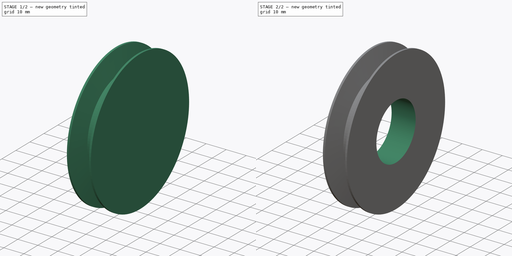
[diagram: build sequence overview — one tinted view per stage of 2, left to right]
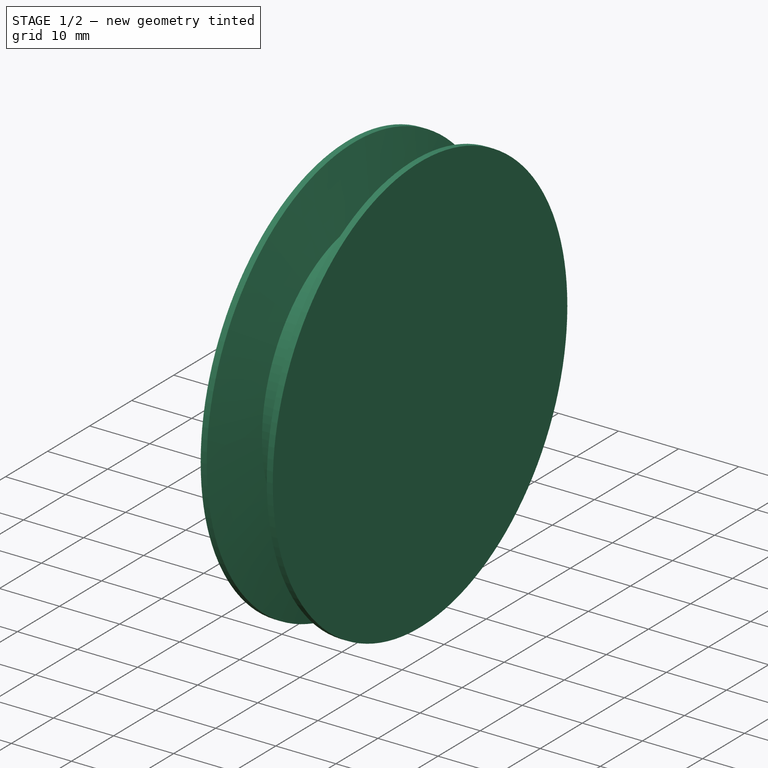
[diagram: stage 1 of 2 — iso view after this stage's code; geometry added in this stage tinted green]
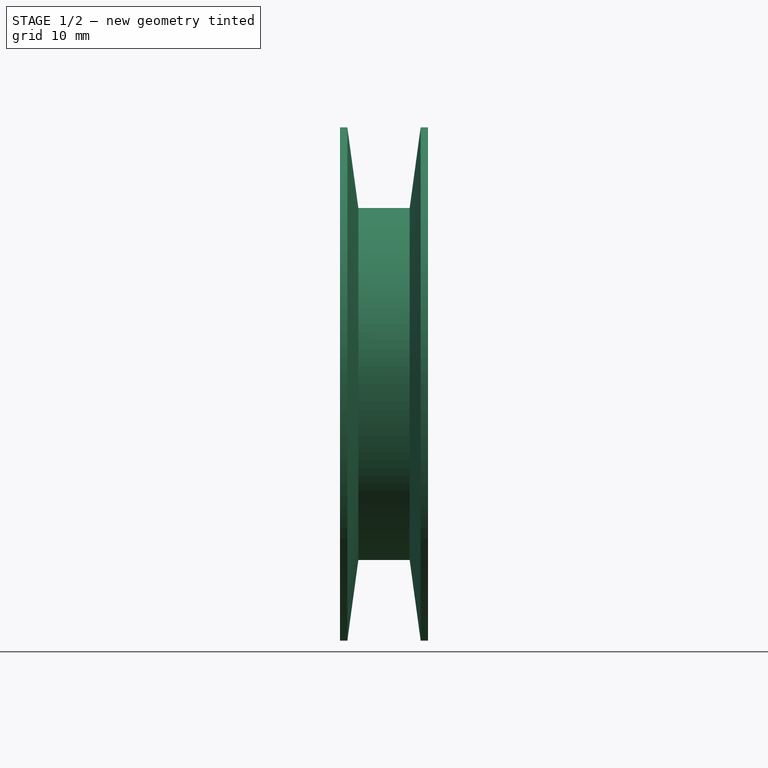
[diagram: stage 1 of 2 — front view after this stage's code; geometry added in this stage tinted green]
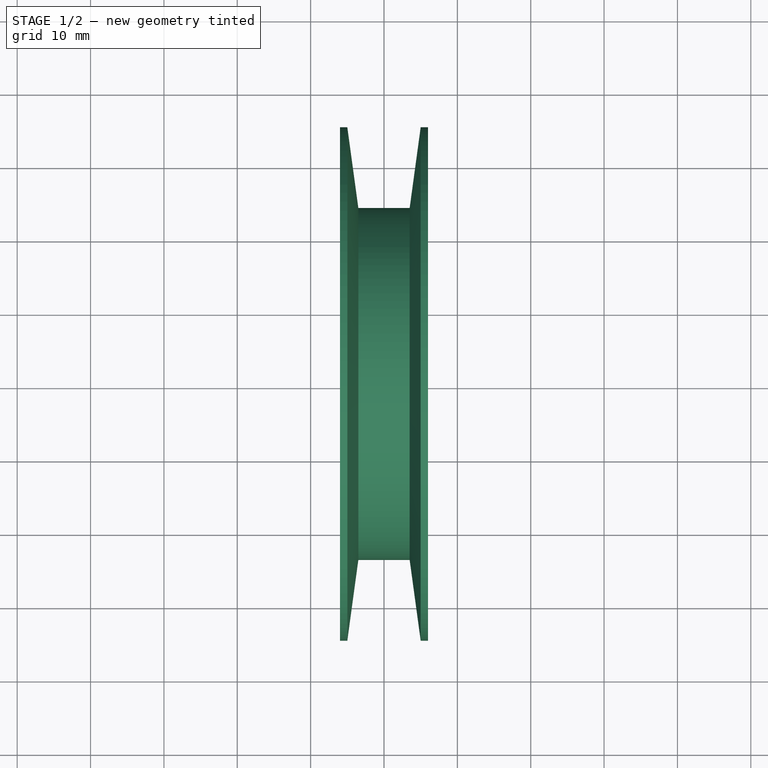
[diagram: stage 1 of 2 — top view after this stage's code; geometry added in this stage tinted green]
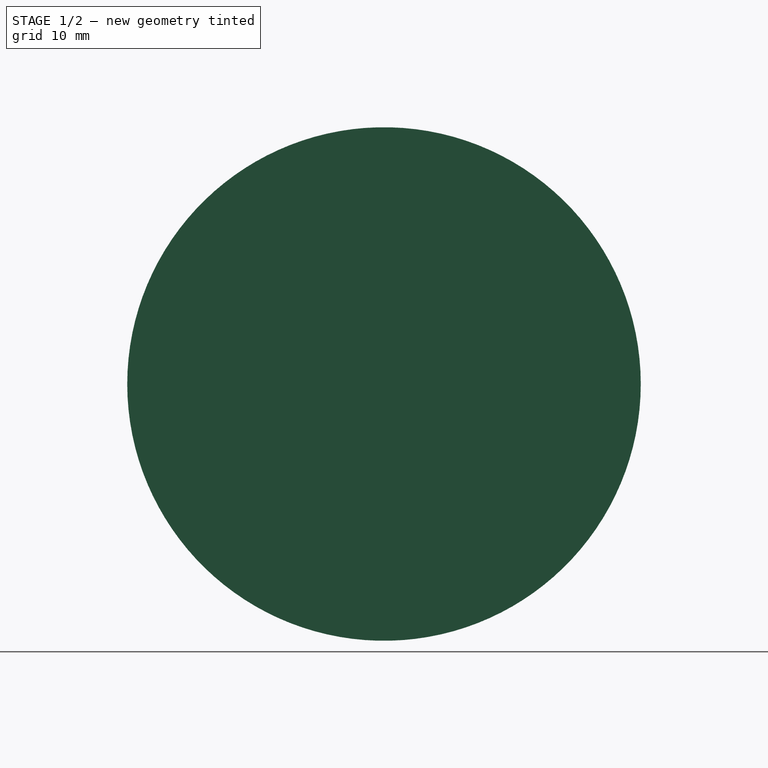
[diagram: stage 1 of 2 — right view after this stage's code; geometry added in this stage tinted green]
FCSTD DOCUMENT  (FreeCAD 0.21R33771 (Git))
Label: Puleggia70-Foro28
License: All rights reserved
LicenseURL: http://en.wikipedia.org/wiki/All_rights_reserved
objects: Sketcher::SketchObject×2, PartDesign::Revolution×1, PartDesign::Pocket×1, PartDesign::CoordinateSystem×1, PartDesign::Body×1
note: 8 computed .brp shape members not serialized (recipe doc carries the construction recipe); baked Part::Feature solids carry a one-line shape summary decoded from their .brp

FEATURE [Sketcher::SketchObject] Sketch
  FullyConstrained = true
  MapMode = 5
  Support = -> [XY_Plane]
  sketch-geometry (8):
    g0: LineSegment StartX=-6 StartY=0 StartZ=0 EndX=6 EndY=1e-16 EndZ=0
    g1: LineSegment StartX=6 StartY=1e-16 StartZ=0 EndX=6 EndY=35 EndZ=0
    g2: LineSegment StartX=3.5 StartY=24 StartZ=0 EndX=-3.5 EndY=24 EndZ=0
    g3: LineSegment StartX=-6 StartY=35 StartZ=0 EndX=-6 EndY=0 EndZ=0
    g4: LineSegment StartX=-6 StartY=35 StartZ=0 EndX=-5 EndY=35 EndZ=0
    g5: LineSegment StartX=6 StartY=35 StartZ=0 EndX=5 EndY=35 EndZ=0
    g6: LineSegment StartX=-5 StartY=35 StartZ=0 EndX=-3.5 EndY=24 EndZ=0
    g7: LineSegment StartX=3.5 StartY=24 StartZ=0 EndX=5 EndY=35 EndZ=0
  constraints (22):
    c: PointOnObject(g0,g-1)
    c: Coincident(g1,g0)
    c: Vertical(g1)
    c: Vertical(g3)
    c: Symmetric(g2,g2,g-2)
    c: Symmetric(g0,g3,g-2)
    c: Coincident(g0,g3)
    c: Equal(g1,g3)
    c: DistanceX(g0,g0) = 12
    c: DistanceY(g0,g2) = 24
    c: DistanceX(g2,g2) = 7
    c: Coincident(g4,g3)
    c: Horizontal(g4)
    c: Coincident(g5,g1)
    c: Equal(g4,g5)
    c: Horizontal(g5)
    c: DistanceX(g4,g4) = 1
    c: Coincident(g6,g4)
    c: Coincident(g6,g2)
    c: Coincident(g7,g2)
    c: Coincident(g7,g5)
    c: DistanceY(g3,g3) = 35
FEATURE [PartDesign::Revolution] Revolution
  Angle = 360
  Axis = (1,0,0)
  Base = (0,0,0)
  Profile = -> Sketch
  ReferenceAxis = -> X_Axis
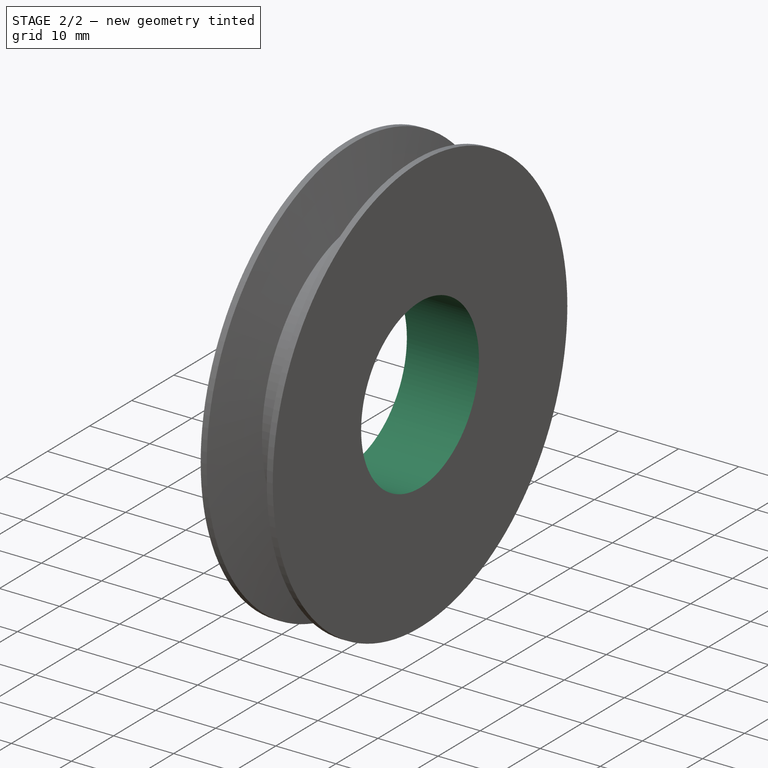
[diagram: stage 2 of 2 — iso view after this stage's code; geometry added in this stage tinted green]
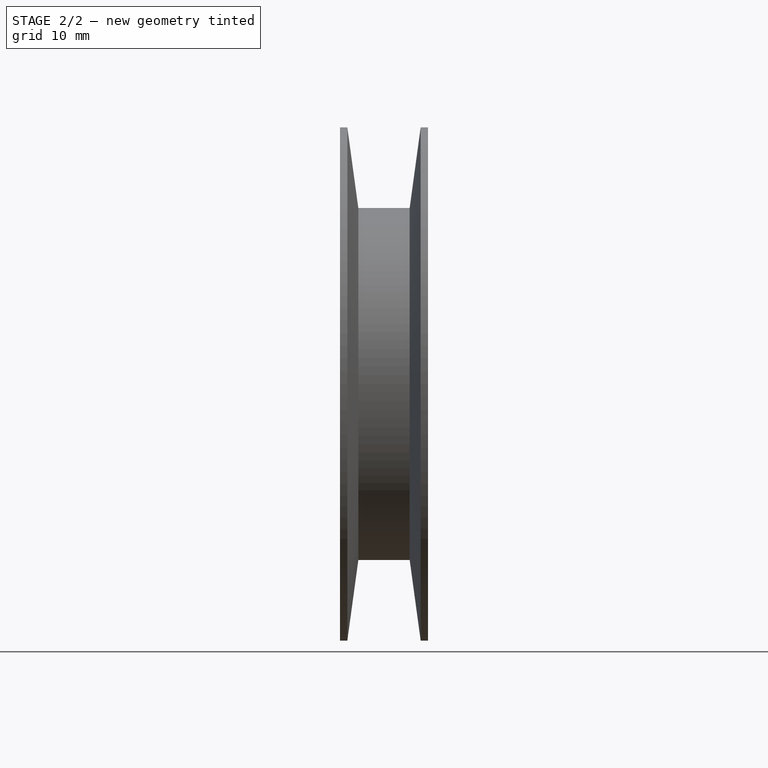
[diagram: stage 2 of 2 — front view after this stage's code; geometry added in this stage tinted green]
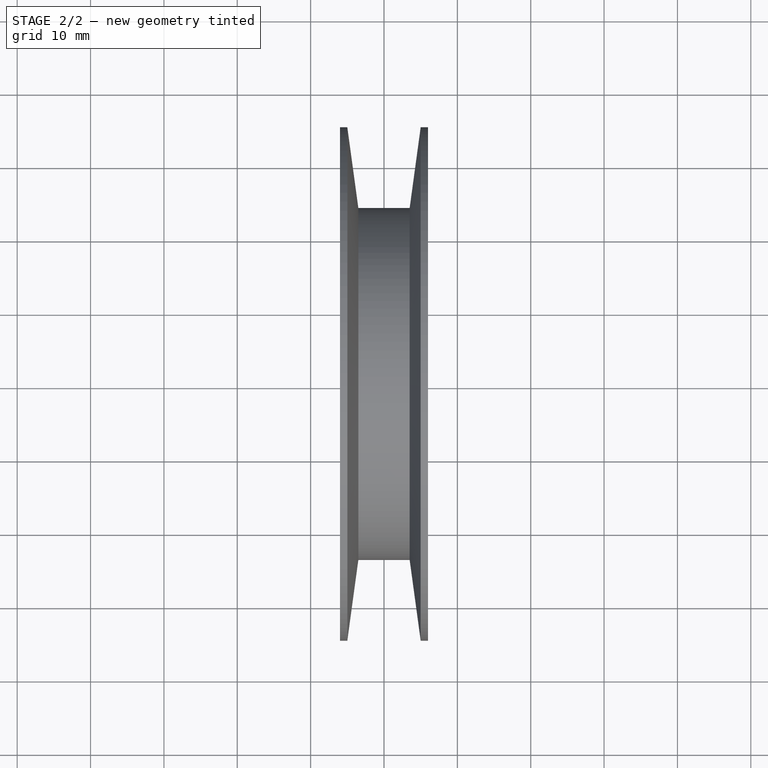
[diagram: stage 2 of 2 — top view after this stage's code; geometry added in this stage tinted green]
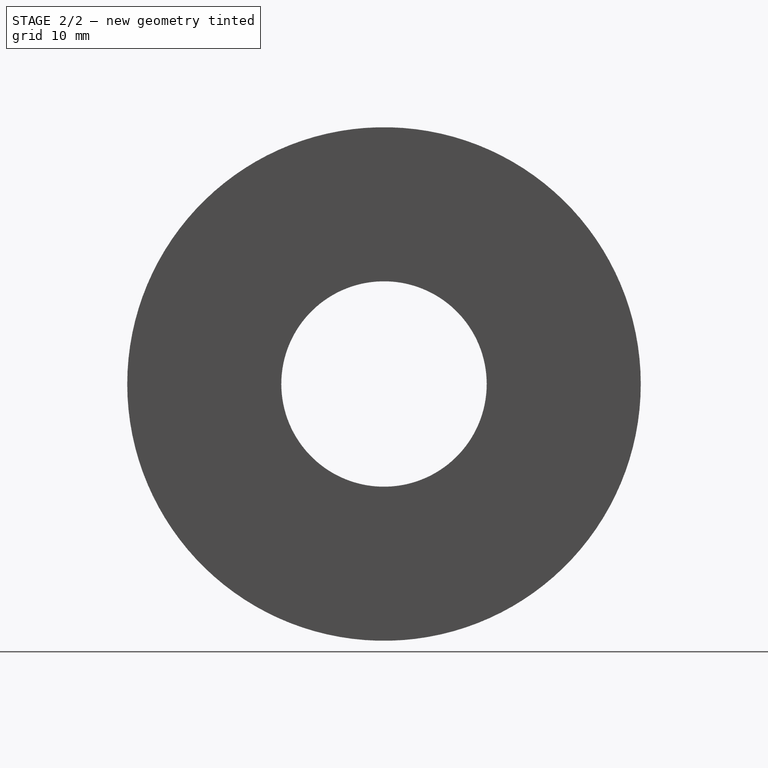
[diagram: stage 2 of 2 — right view after this stage's code; geometry added in this stage tinted green]
FEATURE [Sketcher::SketchObject] Sketch001
  FullyConstrained = true
  MapMode = 5
  Placement = pos=(-6,0,0) rot=(0.57735,-0.57735,-0.57735;2.0944rad)
  Support = -> [Revolution]
  sketch-geometry (1):
    g0: Circle CenterX=0 CenterY=0 CenterZ=0 NormalX=0 NormalY=0 NormalZ=1 AngleXU=0 Radius=14
  constraints (2):
    c: Coincident(g0,g-1)
    c: Radius(g0) = 14
FEATURE [PartDesign::Pocket] Pocket
  BaseFeature = -> Revolution
  Direction = (1,0,0)
  Length = 5
  Length2 = 5
  Profile = -> Sketch001
  ReferenceAxis = -> Sketch001 [N_Axis]
  Type = 1
FEATURE [PartDesign::CoordinateSystem] LCS_Puleggia70  label="LCS_Puleggia70-D28"
  AttacherType = Attacher::AttachEngine3D
FEATURE [PartDesign::Body] Body  label="Corpo"
  Group = -> [Sketch,Revolution,Sketch001,Pocket,LCS_Puleggia70]
  Origin = -> Origin
  Tip = -> Pocket
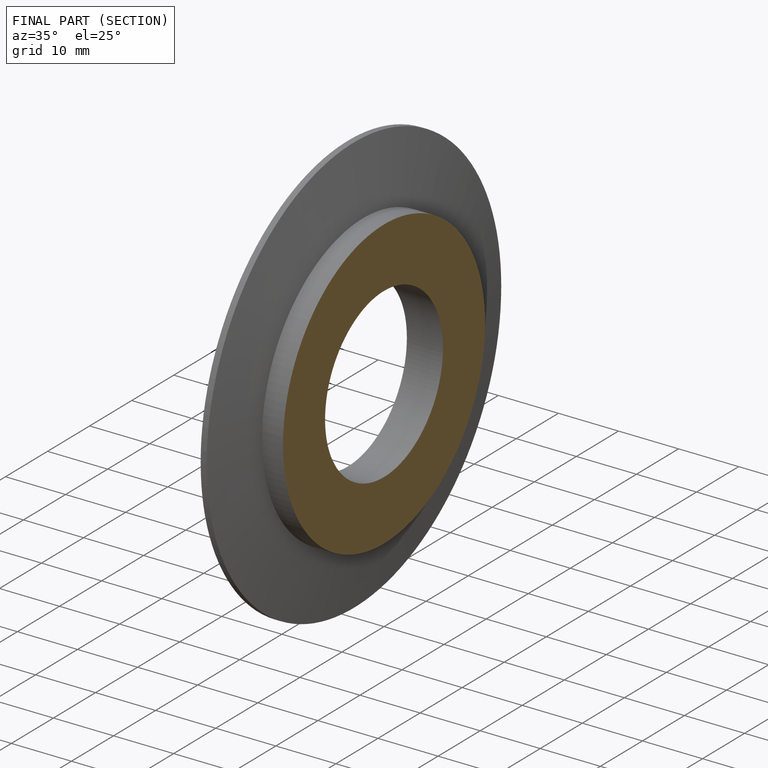
[diagram: finished part — half-section view (interior)]
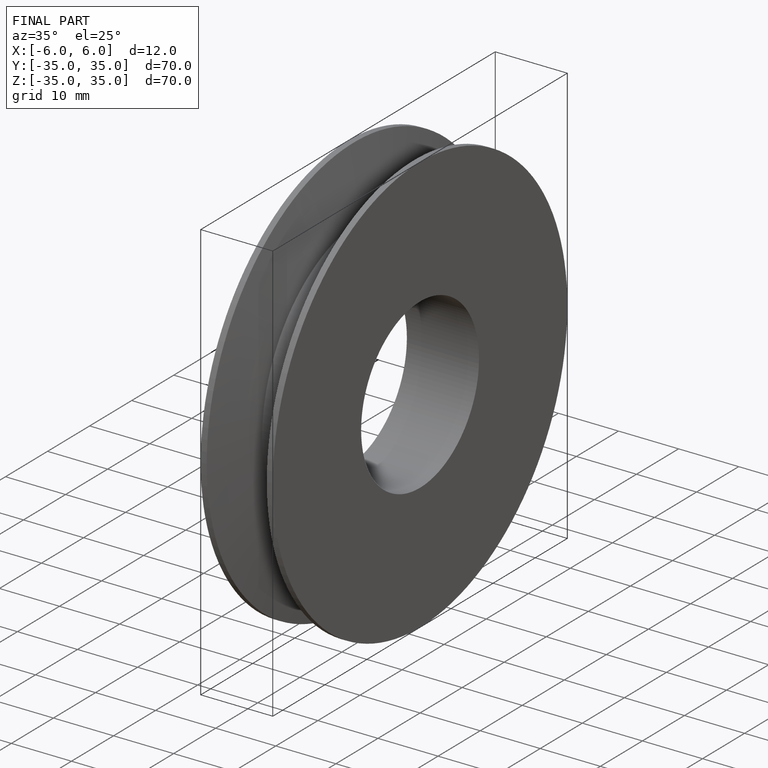
[diagram: finished part — iso view with bounding-box wireframe]
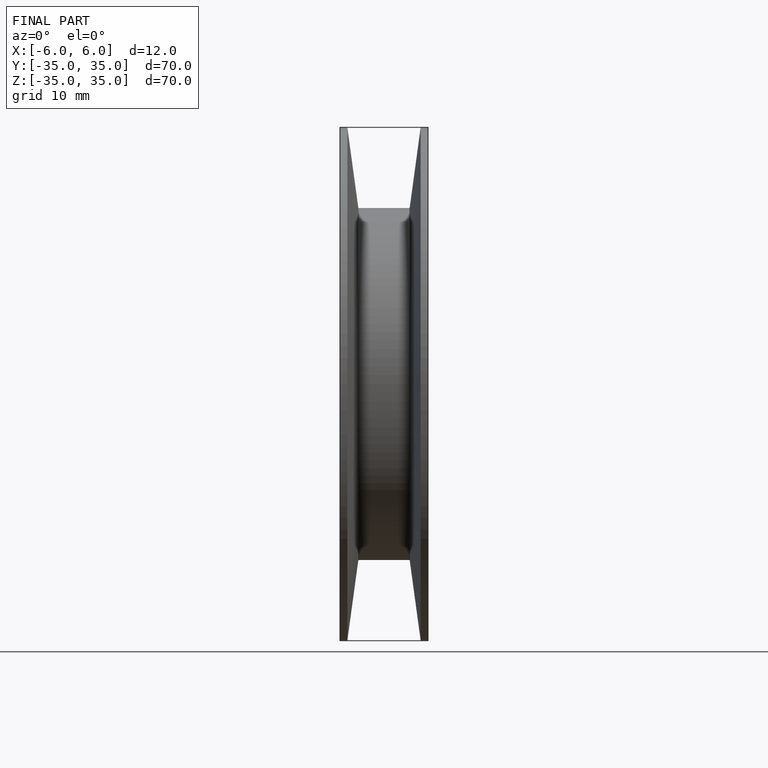
[diagram: finished part — front view with bounding-box wireframe]
